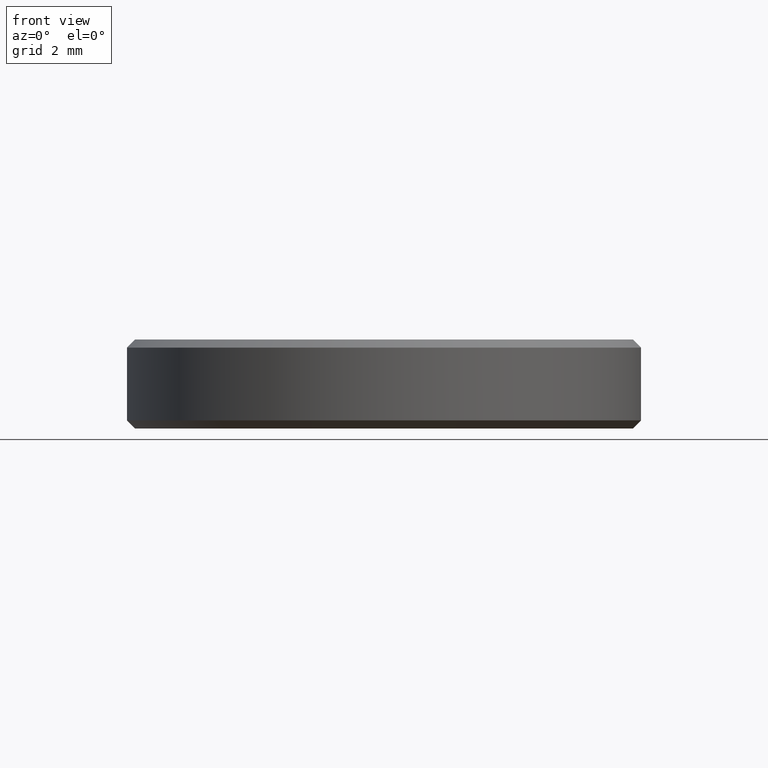
[diagram: clean part render]
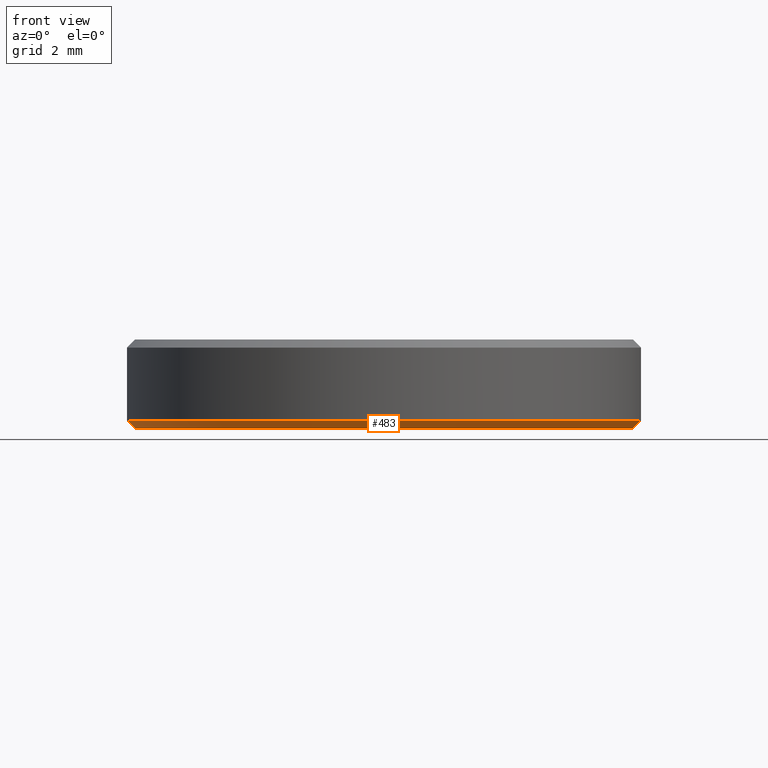
[diagram: same view with one face highlighted and labeled with its STEP entity id]
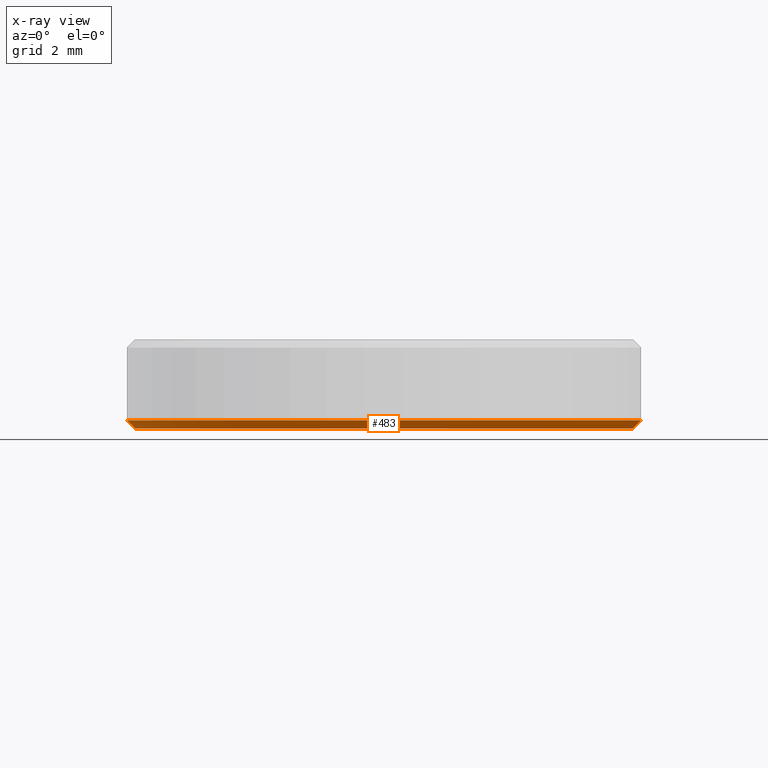
[diagram: x-ray of the same camera — body ghosted, the highlighted face saturated]
A machine part, front view. The second image highlights one B-rep face of the part: STEP entity #483.
The next image is the same camera in x-ray: the body ghosted, the highlighted face saturated — about 0% of this face is hidden behind the body in this view.
In plain terms, the highlighted conical surface has half-angle 45 deg.
Its self-contained STEP definition (entity closure, byte-faithful):
#20 = DIRECTION ( 'NONE',  ( -0.000000000000000000, -0.000000000000000000, -1.000000000000000000 ) ) ;
#23 = CONICAL_SURFACE ( 'NONE', #152, 6.349999999999999645, 0.7853981633974504994 ) ;
#25 = CARTESIAN_POINT ( 'NONE',  ( 6.150000000000000355, 0.000000000000000000, 0.000000000000000000 ) ) ;
#33 = AXIS2_PLACEMENT_3D ( 'NONE', #704, #217, #649 ) ;
#37 = CARTESIAN_POINT ( 'NONE',  ( -6.349999999999999645, 7.776507174585692163E-16, 0.1999999999999987899 ) ) ;
#73 = CARTESIAN_POINT ( 'NONE',  ( 0.000000000000000000, 0.000000000000000000, 0.000000000000000000 ) ) ;
#116 = ORIENTED_EDGE ( 'NONE', *, *, #471, .T. ) ;
#125 = DIRECTION ( 'NONE',  ( 0.7071067811865490160, 0.000000000000000000, 0.7071067811865460184 ) ) ;
#134 = EDGE_CURVE ( 'NONE', #588, #698, #318, .T. ) ;
#148 = VERTEX_POINT ( 'NONE', #212 ) ;
#152 = AXIS2_PLACEMENT_3D ( 'NONE', #408, #459, #406 ) ;
#159 = DIRECTION ( 'NONE',  ( -0.7071067811865490160, 8.659560562354953812E-17, 0.7071067811865460184 ) ) ;
#160 = EDGE_LOOP ( 'NONE', ( #167, #598, #116, #541 ) ) ;
#167 = ORIENTED_EDGE ( 'NONE', *, *, #134, .F. ) ;
#186 = CIRCLE ( 'NONE', #33, 6.349999999999999645 ) ;
#197 = VECTOR ( 'NONE', #159, 1000.000000000000114 ) ;
#212 = CARTESIAN_POINT ( 'NONE',  ( 6.349999999999999645, 7.776507174585692163E-16, 0.1999999999999987899 ) ) ;
#217 = DIRECTION ( 'NONE',  ( -0.000000000000000000, -0.000000000000000000, 1.000000000000000000 ) ) ;
#219 = EDGE_CURVE ( 'NONE', #698, #148, #186, .T. ) ;
#254 = VECTOR ( 'NONE', #125, 1000.000000000000114 ) ;
#296 = CARTESIAN_POINT ( 'NONE',  ( 6.349999999999999645, 0.000000000000000000, 0.1999999999999987899 ) ) ;
#298 = DIRECTION ( 'NONE',  ( 1.000000000000000000, 0.000000000000000000, 0.000000000000000000 ) ) ;
#318 = LINE ( 'NONE', #37, #197 ) ;
#350 = CARTESIAN_POINT ( 'NONE',  ( -6.150000000000000355, 7.654042494670957606E-16, 0.000000000000000000 ) ) ;
#399 = FACE_OUTER_BOUND ( 'NONE', #160, .T. ) ;
#406 = DIRECTION ( 'NONE',  ( 1.000000000000000000, 0.000000000000000000, 0.000000000000000000 ) ) ;
#408 = CARTESIAN_POINT ( 'NONE',  ( 0.000000000000000000, 0.000000000000000000, 0.1999999999999987899 ) ) ;
#459 = DIRECTION ( 'NONE',  ( -0.000000000000000000, -0.000000000000000000, 1.000000000000000000 ) ) ;
#471 = EDGE_CURVE ( 'NONE', #586, #148, #610, .T. ) ;
#483 = ADVANCED_FACE ( 'NONE', ( #399 ), #23, .T. ) ;
#527 = EDGE_CURVE ( 'NONE', #586, #588, #614, .T. ) ;
#536 = AXIS2_PLACEMENT_3D ( 'NONE', #73, #20, #298 ) ;
#541 = ORIENTED_EDGE ( 'NONE', *, *, #219, .F. ) ;
#586 = VERTEX_POINT ( 'NONE', #25 ) ;
#588 = VERTEX_POINT ( 'NONE', #350 ) ;
#598 = ORIENTED_EDGE ( 'NONE', *, *, #527, .F. ) ;
#610 = LINE ( 'NONE', #296, #254 ) ;
#614 = CIRCLE ( 'NONE', #536, 6.150000000000000355 ) ;
#649 = DIRECTION ( 'NONE',  ( 1.000000000000000000, 0.000000000000000000, 0.000000000000000000 ) ) ;
#698 = VERTEX_POINT ( 'NONE', #699 ) ;
#699 = CARTESIAN_POINT ( 'NONE',  ( -6.349999999999999645, 0.000000000000000000, 0.1999999999999987899 ) ) ;
#704 = CARTESIAN_POINT ( 'NONE',  ( 0.000000000000000000, 0.000000000000000000, 0.1999999999999987899 ) ) ;